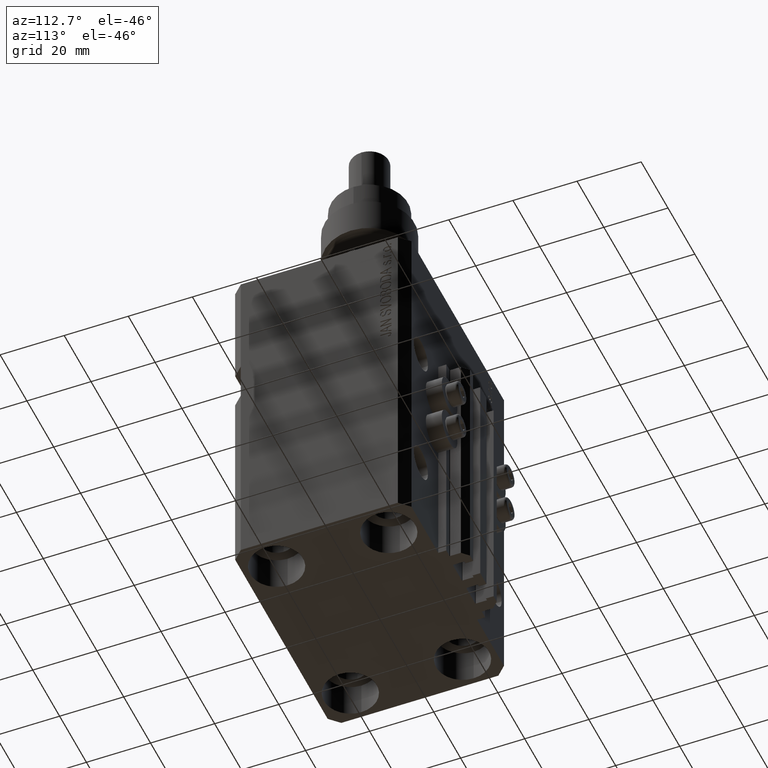
[diagram: clean part render]
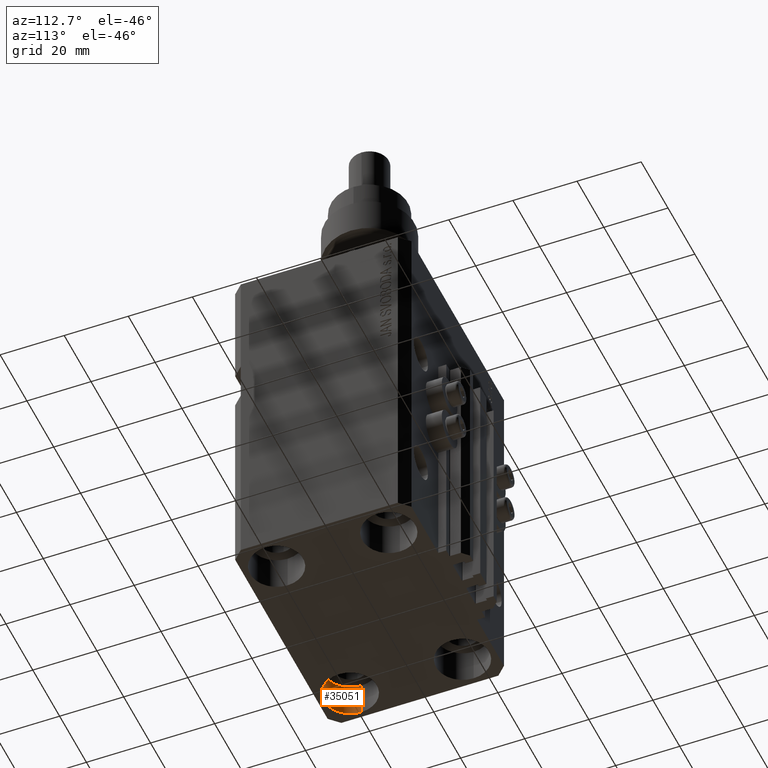
[diagram: same view with one face highlighted and labeled with its STEP entity id]
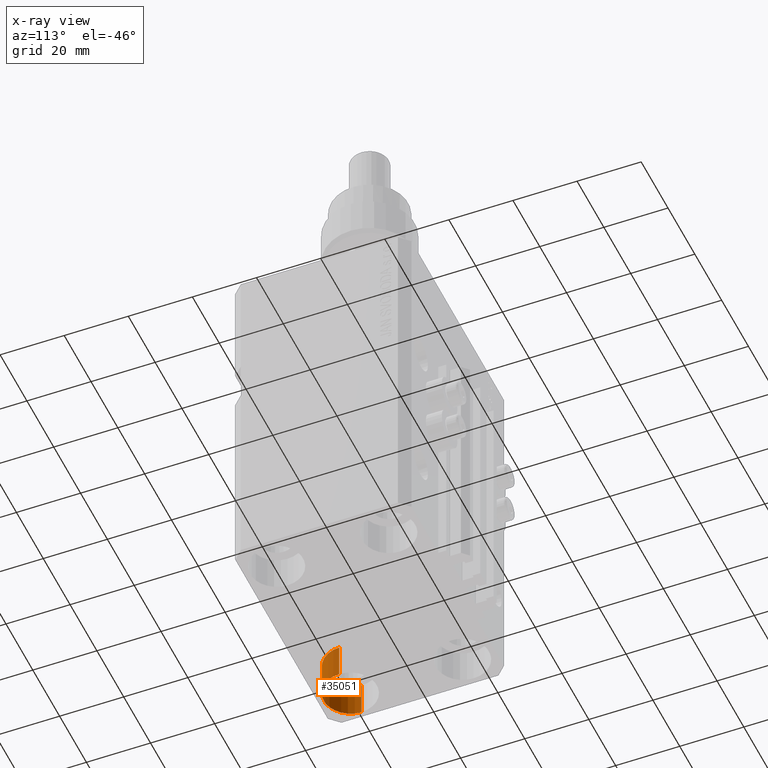
[diagram: x-ray of the same camera — body ghosted, the highlighted face saturated]
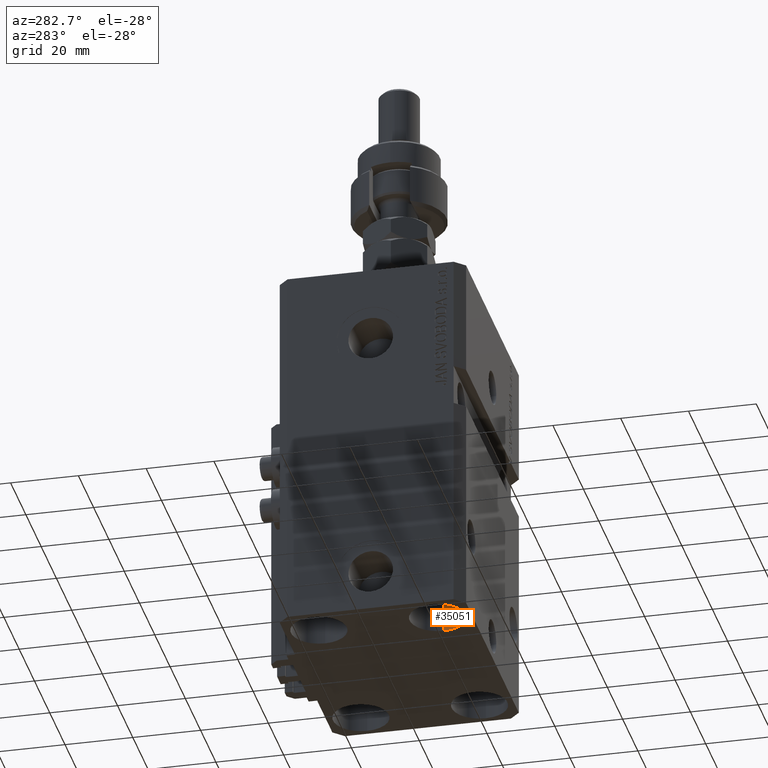
[diagram: same view with one face highlighted and labeled with its STEP entity id]
A machine part, auxiliary view. The second image highlights one B-rep face of the part: STEP entity #35051.
The next image is the same camera in x-ray: the body ghosted, the highlighted face saturated — about 0% of this face is hidden behind the body in this view.
A second angle (auxiliary view) of the same face is appended — the face is thin or edge-on in the first view.
In plain terms, the highlighted cylindrical surface (edge-blend (fillet) strip) has radius 8.25 mm, axis along (-0, -0, -1).
Its self-contained STEP definition (entity closure, byte-faithful):
#1016 = CARTESIAN_POINT ( 'NONE',  ( -27.50000000000000355, -17.50000000000000000, -110.0000000000000000 ) ) ;
#2413 = CARTESIAN_POINT ( 'NONE',  ( -35.75000000000000711, -17.50000000000000000, -99.00000000000000000 ) ) ;
#3178 = EDGE_CURVE ( 'NONE', #6438, #24448, #6950, .T. ) ;
#3226 = ORIENTED_EDGE ( 'NONE', *, *, #3178, .F. ) ;
#3716 = AXIS2_PLACEMENT_3D ( 'NONE', #8630, #26928, #42630 ) ;
#5844 = VECTOR ( 'NONE', #31221, 1000.000000000000000 ) ;
#6438 = VERTEX_POINT ( 'NONE', #48316 ) ;
#6950 = LINE ( 'NONE', #2413, #34310 ) ;
#7761 = CIRCLE ( 'NONE', #3716, 8.250000000000000000 ) ;
#7795 = EDGE_CURVE ( 'NONE', #6438, #43658, #7761, .T. ) ;
#8114 = DIRECTION ( 'NONE',  ( -0.000000000000000000, -0.000000000000000000, 1.000000000000000000 ) ) ;
#8254 = CYLINDRICAL_SURFACE ( 'NONE', #13083, 8.250000000000000000 ) ;
#8630 = CARTESIAN_POINT ( 'NONE',  ( -27.50000000000000355, -17.50000000000000000, -99.00000000000000000 ) ) ;
#10862 = ORIENTED_EDGE ( 'NONE', *, *, #7795, .T. ) ;
#11344 = AXIS2_PLACEMENT_3D ( 'NONE', #1016, #8114, #23590 ) ;
#11977 = VERTEX_POINT ( 'NONE', #45613 ) ;
#13049 = CIRCLE ( 'NONE', #11344, 8.250000000000000000 ) ;
#13083 = AXIS2_PLACEMENT_3D ( 'NONE', #19908, #35388, #16359 ) ;
#16359 = DIRECTION ( 'NONE',  ( -1.000000000000000000, 0.000000000000000000, 0.000000000000000000 ) ) ;
#19908 = CARTESIAN_POINT ( 'NONE',  ( -27.50000000000000355, -17.50000000000000000, -99.00000000000000000 ) ) ;
#20309 = CARTESIAN_POINT ( 'NONE',  ( -19.25000000000000355, -17.50000000000000000, -99.00000000000000000 ) ) ;
#21297 = ORIENTED_EDGE ( 'NONE', *, *, #36375, .T. ) ;
#23590 = DIRECTION ( 'NONE',  ( 1.000000000000000000, 0.000000000000000000, 0.000000000000000000 ) ) ;
#23968 = FACE_OUTER_BOUND ( 'NONE', #30875, .T. ) ;
#24448 = VERTEX_POINT ( 'NONE', #47416 ) ;
#26622 = ORIENTED_EDGE ( 'NONE', *, *, #31798, .F. ) ;
#26928 = DIRECTION ( 'NONE',  ( -0.000000000000000000, -0.000000000000000000, 1.000000000000000000 ) ) ;
#27924 = LINE ( 'NONE', #20309, #5844 ) ;
#30875 = EDGE_LOOP ( 'NONE', ( #10862, #21297, #26622, #3226 ) ) ;
#31221 = DIRECTION ( 'NONE',  ( -0.000000000000000000, -0.000000000000000000, -1.000000000000000000 ) ) ;
#31798 = EDGE_CURVE ( 'NONE', #24448, #11977, #13049, .T. ) ;
#34310 = VECTOR ( 'NONE', #48326, 1000.000000000000000 ) ;
#35051 = ADVANCED_FACE ( 'NONE', ( #23968 ), #8254, .F. ) ;
#35388 = DIRECTION ( 'NONE',  ( -0.000000000000000000, -0.000000000000000000, -1.000000000000000000 ) ) ;
#36375 = EDGE_CURVE ( 'NONE', #43658, #11977, #27924, .T. ) ;
#41088 = CARTESIAN_POINT ( 'NONE',  ( -19.25000000000000355, -17.50000000000000000, -99.00000000000000000 ) ) ;
#42630 = DIRECTION ( 'NONE',  ( 1.000000000000000000, 0.000000000000000000, 0.000000000000000000 ) ) ;
#43658 = VERTEX_POINT ( 'NONE', #41088 ) ;
#45613 = CARTESIAN_POINT ( 'NONE',  ( -19.25000000000000355, -17.50000000000000000, -110.0000000000000000 ) ) ;
#47416 = CARTESIAN_POINT ( 'NONE',  ( -35.75000000000000711, -17.50000000000000000, -110.0000000000000000 ) ) ;
#48316 = CARTESIAN_POINT ( 'NONE',  ( -35.75000000000000711, -17.50000000000000000, -99.00000000000000000 ) ) ;
#48326 = DIRECTION ( 'NONE',  ( -0.000000000000000000, -0.000000000000000000, -1.000000000000000000 ) ) ;